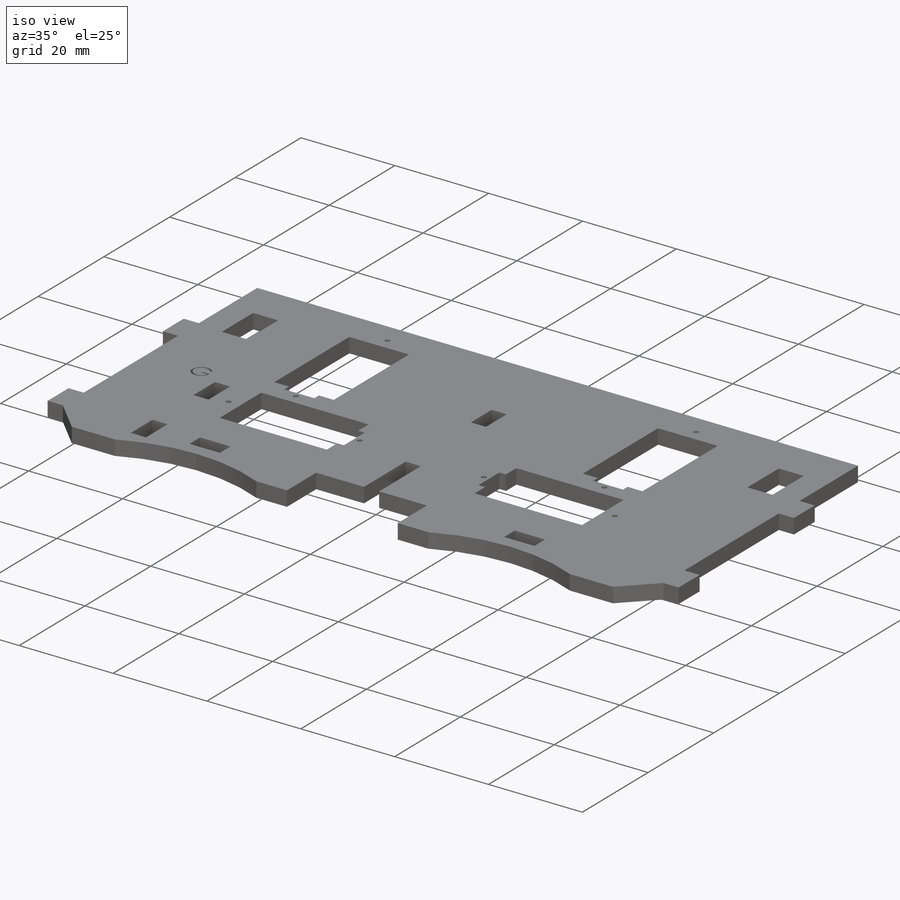
[diagram: iso view]
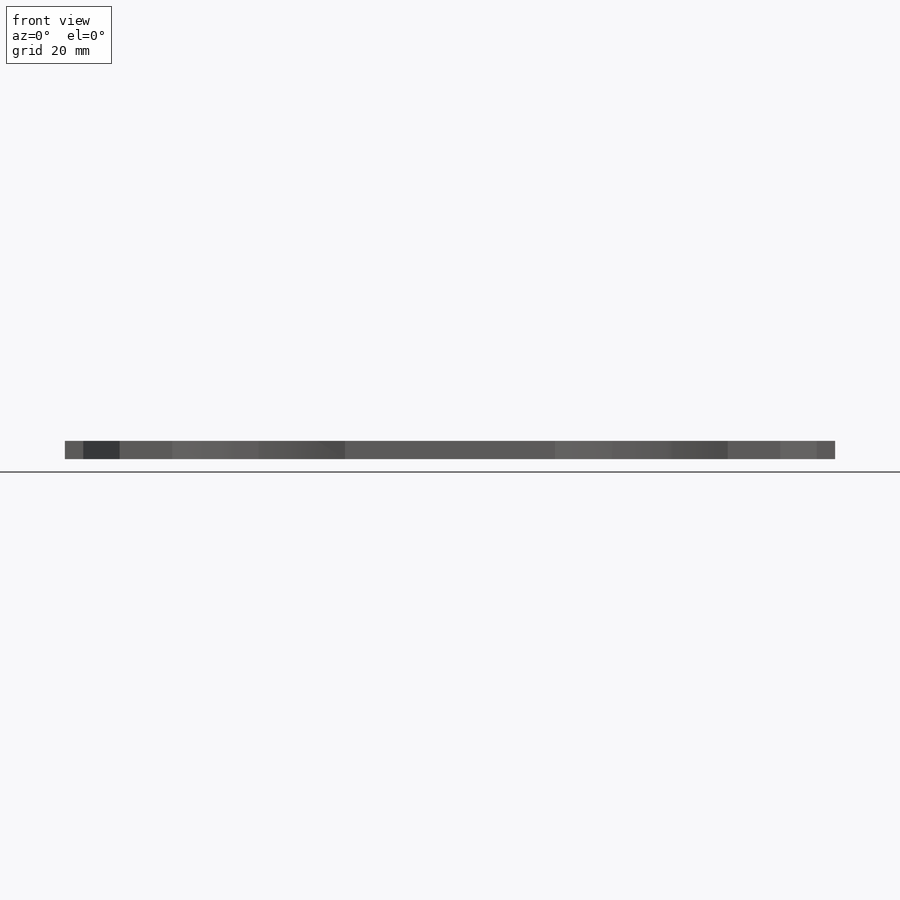
[diagram: front view]
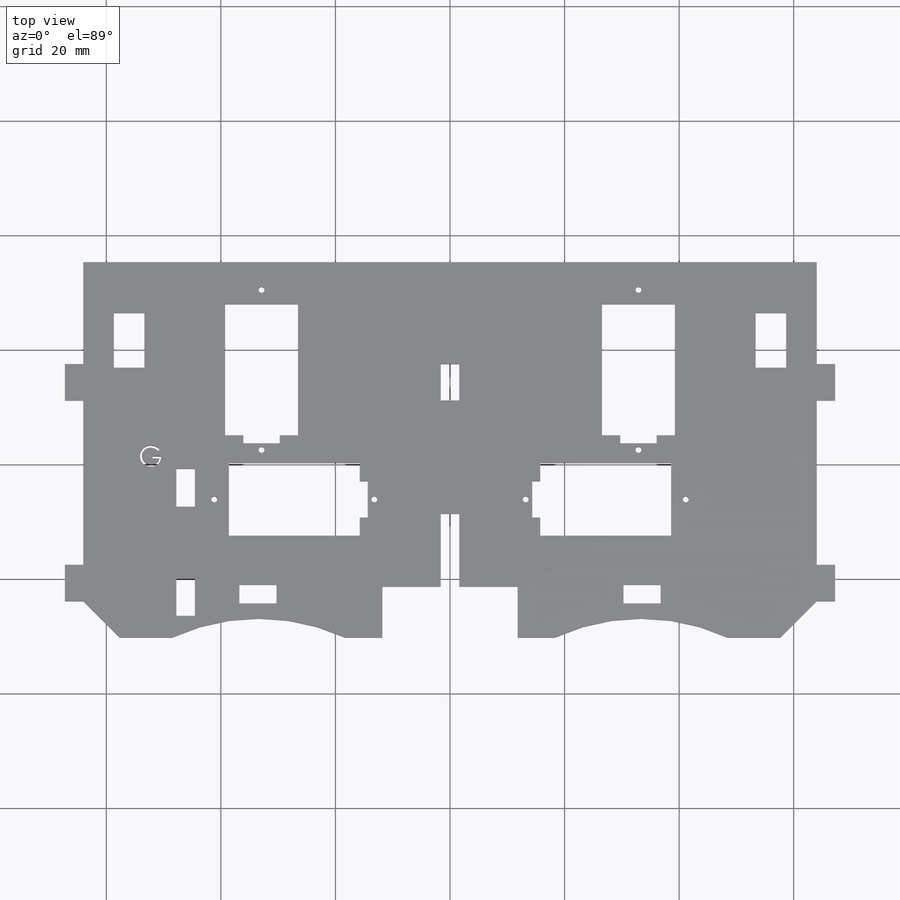
[diagram: top view]
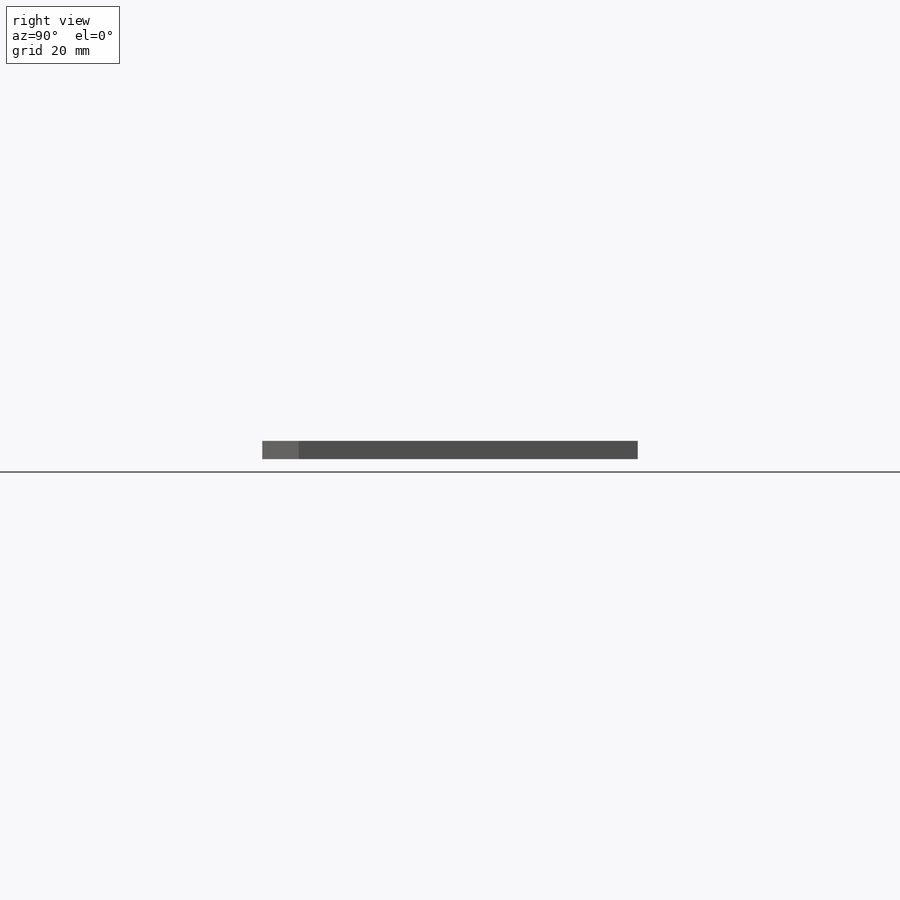
[diagram: right view]
SOLIDWORKS PART (.sldprt)
format: sldprt  version: not decoded by parser v0  size: 620,032 bytes
history: native  units: mm
features: sketch x13, cut_extrude x10, mirror x7, extrude x4, material x1 (+16 scaffold rows collapsed)
feature tree (51):
  scaffold x16  (default folders/planes/origin — collapsed)
  material  "Material <not specified>"
  sketch  "Sketch1"  dims[D1=128.016mm D2=60.452mm]
  extrude  "main body"  Depth=3.175mm
  sketch  "Sketch2"  dims[c1.D1=3.2258mm c1.D2=6.477mm c1.D3=12.7mm c1.D4=30.48mm c2.D3=52.8701mm]
  cut_extrude  "cut for eye center tab"  [1 undecoded]
  sketch  "Sketch3"  dims[D1=3.2258mm D2=6.35mm D3=6.35mm D4=3.2258mm D5=6.35mm D6=12.7mm]
  extrude  "tabs"  Depth=3.175mm
  sketch  "Sketch4"  dims[c1.D5=1.016mm c1.D6=1.016mm c1.D9=2.032mm c1.D1=27.94mm c1.D2=6.35mm c1.D3=22.86mm c1.D4=12.7mm c1.D7=1.397mm c1.D8=6.35mm c2.D9=8.636mm]
  extrude  "servo_hole_SG90-2"  Depth=30.48mm
  cut_extrude  "cut for motors"  [1 undecoded]
  mirror  "Mirror of cut for motors"
  mirror  "mirror or tabs"
  mirror  "mirror of eye center tab"
  sketch  "Sketch5"  dims[c1.D1=6.35mm c1.D2=3.2258mm c1.D3=3.2258mm c1.D4=6.35mm c1.D5=12.7mm c1.D6=19.05mm c2.D4=21.59mm]
  cut_extrude  "Cut-Extrude2"  [1 undecoded]
  sketch  "Sketch9"  dims[D1=6.35mm D2=6.35mm D3=6.35mm]
  cut_extrude  "Cut-Extrude7"  [1 undecoded]
  sketch  "Sketch10"  dims[D1=9.525mm D2=5.334mm D3=3.81mm D4=53.34mm]
  cut_extrude  "cut for servo wires"  [1 undecoded]
  mirror  "Mirror1"
  sketch  "Sketch12"  dims[D1=8.89mm]
  cut_extrude  "Cut-Extrude9"  [1 undecoded]
  mirror  "Mirror2"
  sketch  "Sketch13"  dims[D1=5.08mm]
  extrude  "Boss-Extrude1"  Depth=3.175mm
  sketch  "Sketch14"
  cut_extrude  "Cut-Extrude10"  [1 undecoded]
  mirror  "Mirror3"
  sketch  "Sketch15"  dims[c1.D1=6.604mm c1.D2=6.604mm c1.D3=3.2258mm c1.D4=3.2258mm c1.D5=12.446mm c1.D6=31.75mm c1.D7=10.16mm c2.D4=3.2258mm c2.D6=16.256mm c2.D7=36.068mm]
  cut_extrude  "cut for gear tabs"  [1 undecoded]
  sketch  "Sketch16"
  cut_extrude  "Cut-Extrude11"  [1 undecoded]
  sketch  "Sketch17"
  cut_extrude  "Cut-Extrude12"  [1 undecoded]
  mirror  "Mirror4"
decode coverage: 14 of 34 modeling features carry decoded parameters
note: 10 parameter values undecoded
summary: no parameter record found for 10 features
note: suppression state not decoded; provenance and decode notes live in map.json
